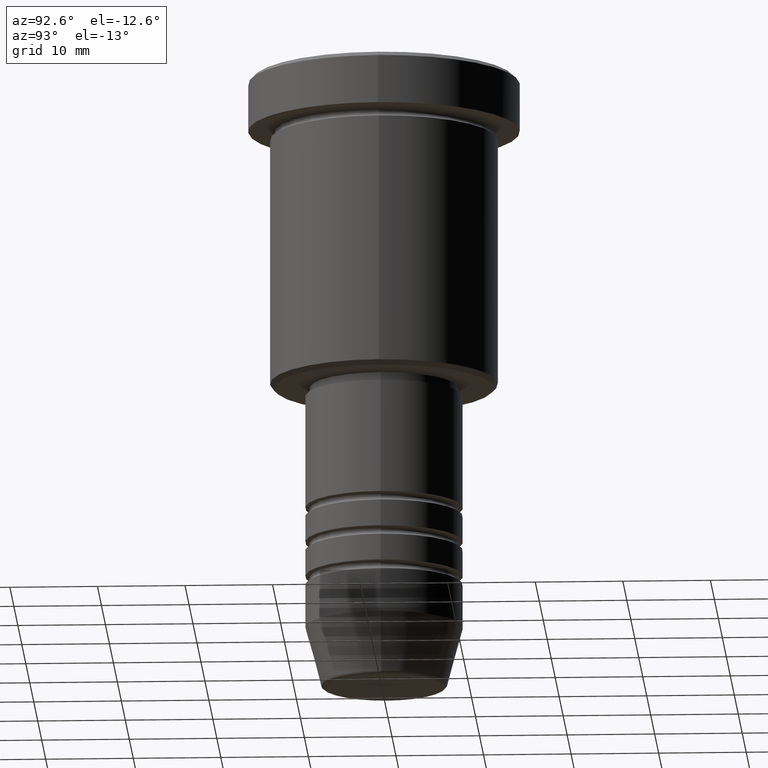
[diagram: clean part render]
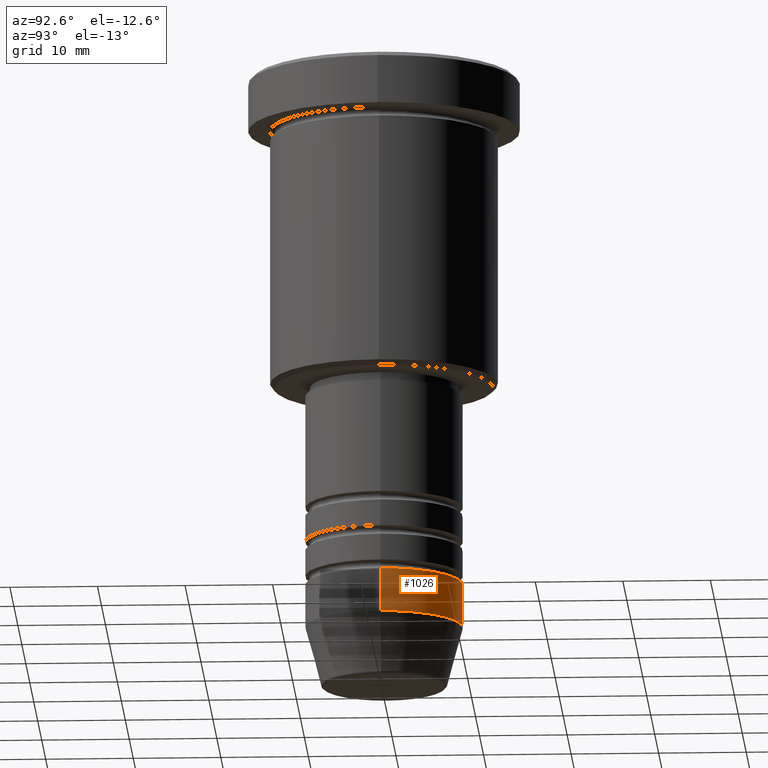
[diagram: same view with one face highlighted and labeled with its STEP entity id]
A machine part, auxiliary view. The second image highlights one B-rep face of the part: STEP entity #1026.
In plain terms, the highlighted cylindrical surface (partial cylindrical patch) has radius 9 mm, axis along (-0, -0, 1).
Its self-contained STEP definition (entity closure, byte-faithful):
#30 = VERTEX_POINT ( 'NONE', #528 ) ;
#51 = EDGE_CURVE ( 'NONE', #225, #103, #625, .T. ) ;
#54 = ORIENTED_EDGE ( 'NONE', *, *, #992, .F. ) ;
#56 = DIRECTION ( 'NONE',  ( -0.000000000000000000, -0.000000000000000000, 1.000000000000000000 ) ) ;
#80 = EDGE_LOOP ( 'NONE', ( #221, #1153, #54, #511 ) ) ;
#92 = DIRECTION ( 'NONE',  ( 1.000000000000000000, 0.000000000000000000, 0.000000000000000000 ) ) ;
#103 = VERTEX_POINT ( 'NONE', #449 ) ;
#131 = AXIS2_PLACEMENT_3D ( 'NONE', #555, #1167, #92 ) ;
#221 = ORIENTED_EDGE ( 'NONE', *, *, #538, .T. ) ;
#225 = VERTEX_POINT ( 'NONE', #921 ) ;
#228 = DIRECTION ( 'NONE',  ( -0.000000000000000000, -0.000000000000000000, 1.000000000000000000 ) ) ;
#238 = VECTOR ( 'NONE', #994, 1000.000000000000000 ) ;
#255 = AXIS2_PLACEMENT_3D ( 'NONE', #981, #526, #439 ) ;
#340 = VECTOR ( 'NONE', #56, 1000.000000000000000 ) ;
#435 = AXIS2_PLACEMENT_3D ( 'NONE', #1048, #228, #606 ) ;
#439 = DIRECTION ( 'NONE',  ( 1.000000000000000000, 0.000000000000000000, 0.000000000000000000 ) ) ;
#445 = CYLINDRICAL_SURFACE ( 'NONE', #255, 9.000000000000000000 ) ;
#449 = CARTESIAN_POINT ( 'NONE',  ( -9.000000000000000000, 1.102182119232617714E-15, -59.00000000000000711 ) ) ;
#511 = ORIENTED_EDGE ( 'NONE', *, *, #702, .F. ) ;
#523 = CARTESIAN_POINT ( 'NONE',  ( -9.000000000000000000, 1.102182119232617714E-15, 0.000000000000000000 ) ) ;
#526 = DIRECTION ( 'NONE',  ( -0.000000000000000000, -0.000000000000000000, 1.000000000000000000 ) ) ;
#528 = CARTESIAN_POINT ( 'NONE',  ( 9.000000000000000000, 0.000000000000000000, -59.00000000000000711 ) ) ;
#538 = EDGE_CURVE ( 'NONE', #961, #225, #1047, .T. ) ;
#545 = CARTESIAN_POINT ( 'NONE',  ( 9.000000000000000000, 0.000000000000000000, -64.00000000000000000 ) ) ;
#555 = CARTESIAN_POINT ( 'NONE',  ( 0.000000000000000000, 0.000000000000000000, -59.00000000000000711 ) ) ;
#606 = DIRECTION ( 'NONE',  ( 1.000000000000000000, 0.000000000000000000, 0.000000000000000000 ) ) ;
#617 = FACE_OUTER_BOUND ( 'NONE', #80, .T. ) ;
#620 = CARTESIAN_POINT ( 'NONE',  ( 9.000000000000000000, 0.000000000000000000, 0.000000000000000000 ) ) ;
#625 = LINE ( 'NONE', #523, #238 ) ;
#702 = EDGE_CURVE ( 'NONE', #961, #30, #1155, .T. ) ;
#855 = CIRCLE ( 'NONE', #131, 9.000000000000000000 ) ;
#921 = CARTESIAN_POINT ( 'NONE',  ( -9.000000000000000000, 1.102182119232617714E-15, -64.00000000000000000 ) ) ;
#961 = VERTEX_POINT ( 'NONE', #545 ) ;
#981 = CARTESIAN_POINT ( 'NONE',  ( 0.000000000000000000, 0.000000000000000000, 0.000000000000000000 ) ) ;
#992 = EDGE_CURVE ( 'NONE', #30, #103, #855, .T. ) ;
#994 = DIRECTION ( 'NONE',  ( -0.000000000000000000, -0.000000000000000000, 1.000000000000000000 ) ) ;
#1026 = ADVANCED_FACE ( 'NONE', ( #617 ), #445, .T. ) ;
#1047 = CIRCLE ( 'NONE', #435, 9.000000000000000000 ) ;
#1048 = CARTESIAN_POINT ( 'NONE',  ( 0.000000000000000000, 0.000000000000000000, -64.00000000000000000 ) ) ;
#1153 = ORIENTED_EDGE ( 'NONE', *, *, #51, .T. ) ;
#1155 = LINE ( 'NONE', #620, #340 ) ;
#1167 = DIRECTION ( 'NONE',  ( -0.000000000000000000, -0.000000000000000000, 1.000000000000000000 ) ) ;